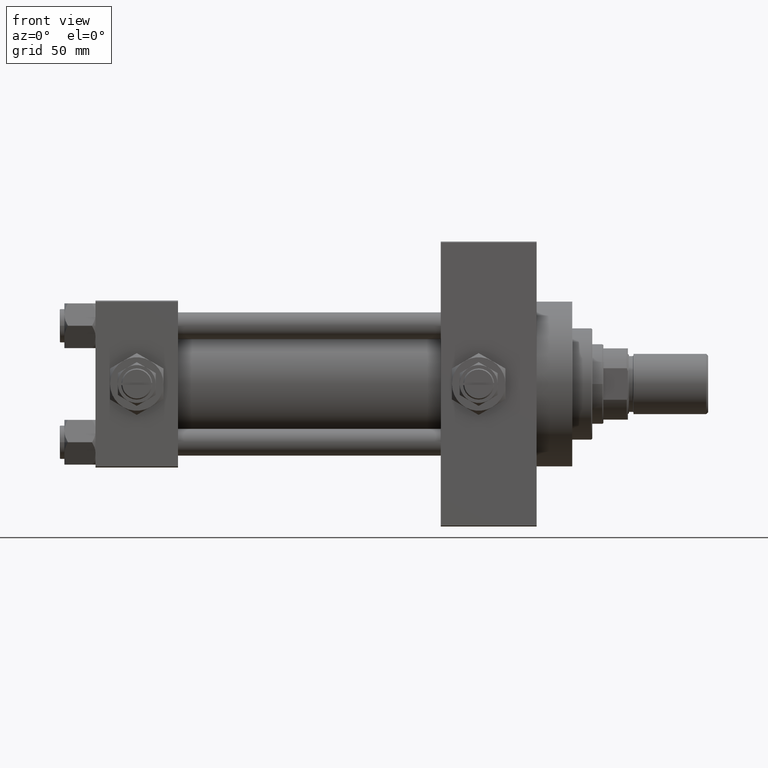
[diagram: clean part render]
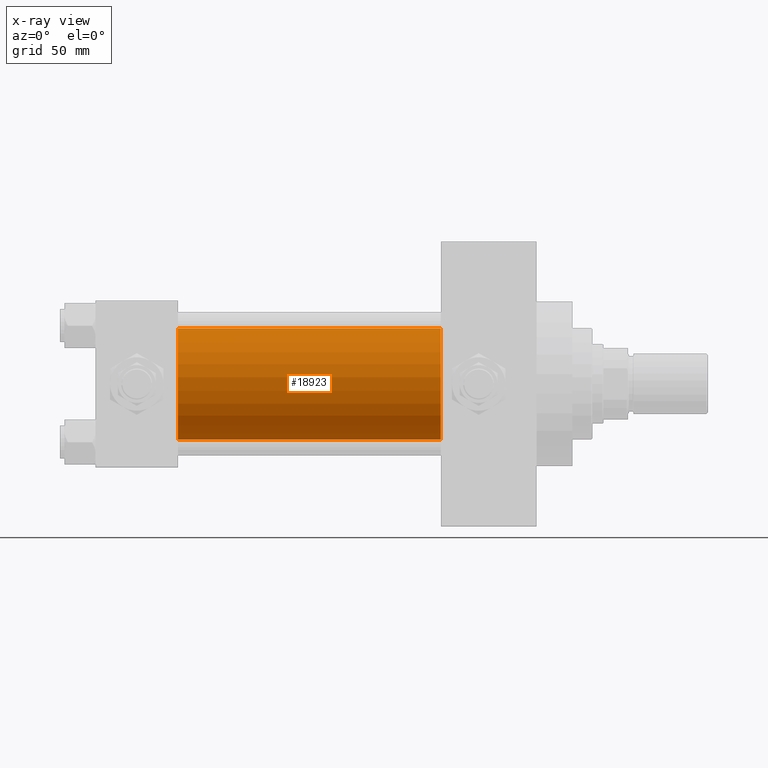
[diagram: x-ray — body ghosted, one internal face saturated and labeled with its STEP entity id]
A machine part, front view, then the same camera in x-ray: the body is ghosted and one INTERNAL B-rep face — a face not visible from any outside direction — is saturated and labeled: STEP entity #18923.
In plain terms, the highlighted cylindrical surface (partial cylindrical patch) has radius 25 mm, axis along (-1, -0, -0).
Its self-contained STEP definition (entity closure, byte-faithful):
#229 = EDGE_CURVE ( 'NONE', #33996, #42320, #45455, .T. ) ;
#1217 = VERTEX_POINT ( 'NONE', #24660 ) ;
#3372 = CARTESIAN_POINT ( 'NONE',  ( 155.0000000000000000, -2.602085213965210642E-15, 0.000000000000000000 ) ) ;
#3699 = DIRECTION ( 'NONE',  ( -1.000000000000000000, -0.000000000000000000, -0.000000000000000000 ) ) ;
#4567 = EDGE_CURVE ( 'NONE', #49185, #42320, #32146, .T. ) ;
#5398 = AXIS2_PLACEMENT_3D ( 'NONE', #3372, #44650, #40871 ) ;
#5577 = CARTESIAN_POINT ( 'NONE',  ( 37.00000000000000000, -2.602085213965210642E-15, 0.000000000000000000 ) ) ;
#5738 = CARTESIAN_POINT ( 'NONE',  ( 155.0000000000000000, -2.602085213965210642E-15, 25.00000000000000000 ) ) ;
#8349 = ORIENTED_EDGE ( 'NONE', *, *, #4567, .F. ) ;
#8773 = VECTOR ( 'NONE', #24378, 1000.000000000000000 ) ;
#10420 = AXIS2_PLACEMENT_3D ( 'NONE', #5577, #47588, #32981 ) ;
#13044 = LINE ( 'NONE', #5738, #8773 ) ;
#13225 = CARTESIAN_POINT ( 'NONE',  ( 37.00000000000000000, 4.595317839031724996E-16, -25.00000000000000000 ) ) ;
#13911 = ORIENTED_EDGE ( 'NONE', *, *, #20957, .T. ) ;
#14611 = DIRECTION ( 'NONE',  ( 0.000000000000000000, 0.000000000000000000, 1.000000000000000000 ) ) ;
#17310 = ORIENTED_EDGE ( 'NONE', *, *, #23564, .F. ) ;
#18392 = DIRECTION ( 'NONE',  ( -1.000000000000000000, -0.000000000000000000, -0.000000000000000000 ) ) ;
#18923 = ADVANCED_FACE ( 'NONE', ( #37736 ), #19137, .F. ) ;
#19137 = CYLINDRICAL_SURFACE ( 'NONE', #36541, 25.00000000000000000 ) ;
#20957 = EDGE_CURVE ( 'NONE', #1217, #33996, #46309, .T. ) ;
#23564 = EDGE_CURVE ( 'NONE', #1217, #49185, #13044, .T. ) ;
#24378 = DIRECTION ( 'NONE',  ( -1.000000000000000000, -0.000000000000000000, -0.000000000000000000 ) ) ;
#24660 = CARTESIAN_POINT ( 'NONE',  ( 155.0000000000000000, -2.602085213965210642E-15, 25.00000000000000000 ) ) ;
#25548 = VECTOR ( 'NONE', #3699, 1000.000000000000000 ) ;
#30329 = ORIENTED_EDGE ( 'NONE', *, *, #229, .T. ) ;
#30701 = CARTESIAN_POINT ( 'NONE',  ( 155.0000000000000000, -2.602085213965210642E-15, 0.000000000000000000 ) ) ;
#31414 = CARTESIAN_POINT ( 'NONE',  ( 155.0000000000000000, 4.595317839031724996E-16, -25.00000000000000000 ) ) ;
#32146 = CIRCLE ( 'NONE', #10420, 25.00000000000000000 ) ;
#32981 = DIRECTION ( 'NONE',  ( 0.000000000000000000, 0.000000000000000000, -1.000000000000000000 ) ) ;
#33996 = VERTEX_POINT ( 'NONE', #31414 ) ;
#36541 = AXIS2_PLACEMENT_3D ( 'NONE', #30701, #18392, #14611 ) ;
#37736 = FACE_OUTER_BOUND ( 'NONE', #42588, .T. ) ;
#40590 = CARTESIAN_POINT ( 'NONE',  ( 37.00000000000000000, -2.602085213965210642E-15, 25.00000000000000000 ) ) ;
#40871 = DIRECTION ( 'NONE',  ( 0.000000000000000000, 0.000000000000000000, -1.000000000000000000 ) ) ;
#42320 = VERTEX_POINT ( 'NONE', #13225 ) ;
#42588 = EDGE_LOOP ( 'NONE', ( #13911, #30329, #8349, #17310 ) ) ;
#44650 = DIRECTION ( 'NONE',  ( 1.000000000000000000, 0.000000000000000000, 0.000000000000000000 ) ) ;
#45455 = LINE ( 'NONE', #45694, #25548 ) ;
#45694 = CARTESIAN_POINT ( 'NONE',  ( 155.0000000000000000, 4.595317839031724996E-16, -25.00000000000000000 ) ) ;
#46309 = CIRCLE ( 'NONE', #5398, 25.00000000000000000 ) ;
#47588 = DIRECTION ( 'NONE',  ( 1.000000000000000000, 0.000000000000000000, 0.000000000000000000 ) ) ;
#49185 = VERTEX_POINT ( 'NONE', #40590 ) ;